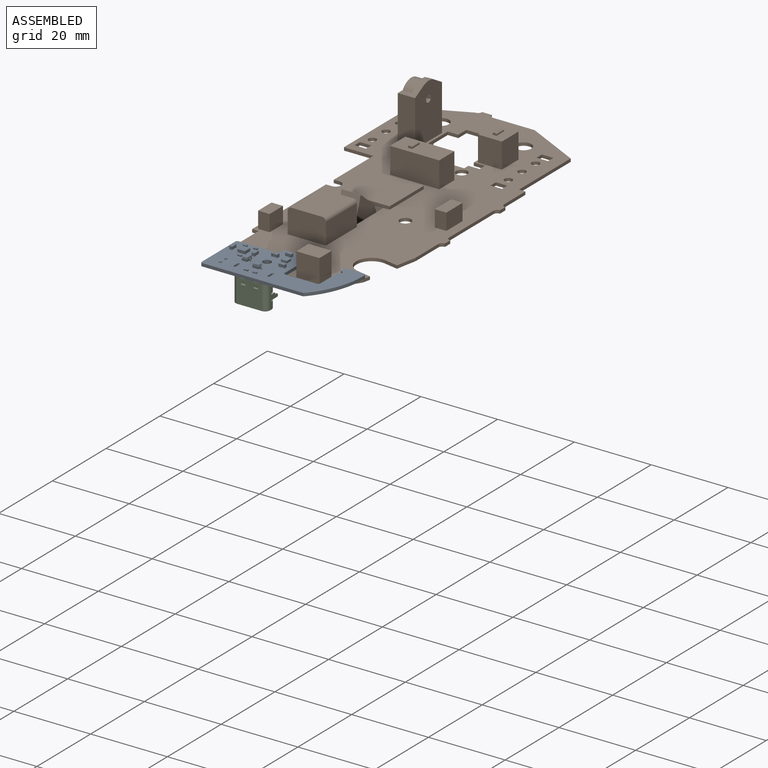
[diagram: assembled view]
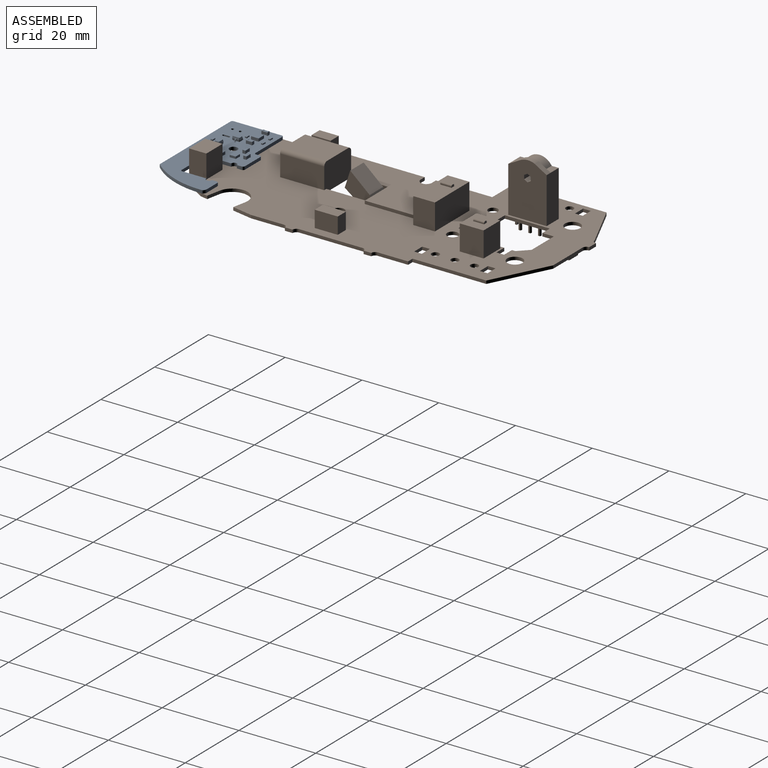
[diagram: assembled view, second angle]
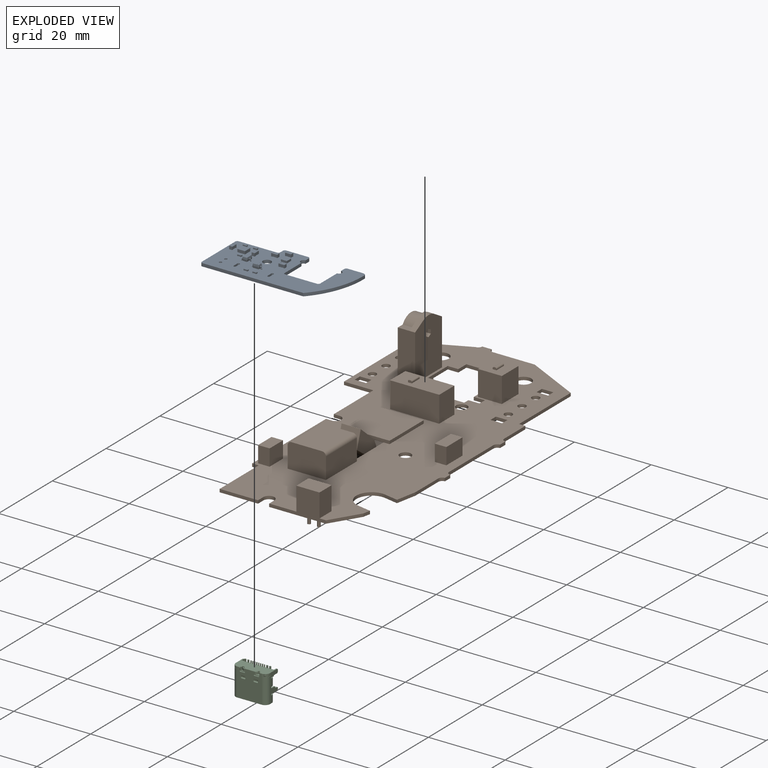
[diagram: exploded view]
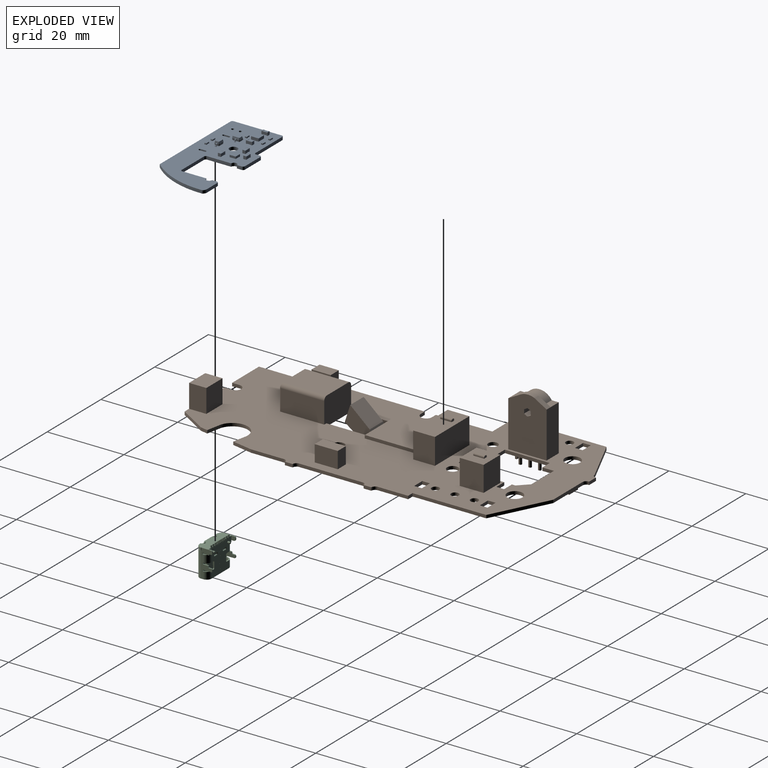
[diagram: exploded view, second angle]
FCSTD DOCUMENT  (FreeCAD 0.19R23266 (Git))
Label: cad
License: All rights reserved
LicenseURL: http://en.wikipedia.org/wiki/All_rights_reserved
objects: Part::Feature×14, App::Link×7, App::Part×6, Sketcher::SketchObject×2, PartDesign::FeatureBase×1, PartDesign::Body×1, Part::FeaturePython×1, Mesh::Feature×1, PartDesign::CoordinateSystem×1
note: 20 computed .brp shape members not serialized (recipe doc carries the construction recipe); baked Part::Feature solids carry a one-line shape summary decoded from their .brp

FEATURE [Part::Feature] Part__Feature  label="Circuit v5"
  shape: bbox 45.55 x 91.05 x 19.81 mm, 215 faces, 11 solids (baked)
FEATURE [PartDesign::FeatureBase] BaseFeature
  BaseFeature = -> Part__Feature
FEATURE [Sketcher::SketchObject] Sketch
  ExternalGeometry = -> [BaseFeature]
  MapMode = 5
  Placement = pos=(0,0,0.8) rot=(0,0,1;0rad)
  Support = -> [BaseFeature]
  sketch-geometry (15):
    g0: LineSegment StartX=-11.1598 StartY=-37.6013 StartZ=0 EndX=-11.1598 EndY=-51.1013 EndZ=0
    g1: LineSegment StartX=-11.1598 StartY=-51.1013 StartZ=0 EndX=16.5135 EndY=-51.1013 EndZ=0
    g2: LineSegment StartX=19.2106 StartY=-46.7035 StartZ=0 EndX=21.3824 EndY=-35.6013 EndZ=0
    g3: LineSegment StartX=19.2106 StartY=-46.7035 StartZ=0 EndX=16.5135 EndY=-51.1013 EndZ=0
    g4: Circle CenterX=15.8402 CenterY=-38.1013 CenterZ=0 NormalX=0 NormalY=0 NormalZ=1 AngleXU=0 Radius=1.25
    g5: Circle CenterX=6.59022 CenterY=-38.1013 CenterZ=0 NormalX=0 NormalY=0 NormalZ=1 AngleXU=0 Radius=1.25
    g6: LineSegment [constr] StartX=21.3824 StartY=-35.6013 StartZ=0 EndX=-0.159781 EndY=-35.6013 EndZ=0
    g7: LineSegment StartX=-0.159781 StartY=-35.6013 StartZ=0 EndX=-0.159781 EndY=-37.6013 EndZ=0
    g8: LineSegment StartX=-0.159781 StartY=-37.6013 StartZ=0 EndX=-11.1598 EndY=-37.6013 EndZ=0
    g9: LineSegment StartX=-0.159781 StartY=-35.6013 StartZ=0 EndX=6.59022 EndY=-35.6013 EndZ=0
    g10: LineSegment StartX=21.3824 StartY=-35.6013 StartZ=0 EndX=15.8402 EndY=-35.6013 EndZ=0
    g11: LineSegment StartX=6.59022 StartY=-35.6013 StartZ=0 EndX=6.59022 EndY=-45.6013 EndZ=0
    g12: LineSegment StartX=15.8402 StartY=-35.6013 StartZ=0 EndX=15.8402 EndY=-45.6013 EndZ=0
    g13: LineSegment StartX=15.8402 StartY=-45.6013 StartZ=0 EndX=6.59022 EndY=-45.6013 EndZ=0
    g14: Circle CenterX=0.290219 CenterY=-42.6513 CenterZ=0 NormalX=0 NormalY=0 NormalZ=1 AngleXU=0 Radius=1.05
  constraints (44):
    c: Vertical(g0)
    c: Coincident(g1,g0)
    c: Horizontal(g1)
    c: Parallel(g2,g-9)
    c: Coincident(g3,g2)
    c: Coincident(g3,g1)
    c: Parallel(g3,g-7)
    c: Distance(g4,g-6) = 6.5
    c: Equal(g5,g4)
    c: Diameter(g4) = 2.5
    c: Horizontal(g5,g4)
    c: Distance(g5,g-3) = 17.75
    c: Distance(g5,g4) = 9.25
    c: PointOnObject(g2,g-8)
    c: Distance(g2,g-6) = 9
    c: Coincident(g6,g2)
    c: Coincident(g7,g6)
    c: Vertical(g7)
    c: Coincident(g8,g7)
    c: Horizontal(g8)
    c: Coincident(g0,g8)
    c: PointOnObject(g0,g-3)
    c: Distance(g6,g-3) = 11
    c: Distance(g7,g-4) = 7
    c: Coincident(g9,g7)
    c: PointOnObject(g9,g6)
    c: Horizontal(g9)
    c: Coincident(g10,g2)
    c: PointOnObject(g10,g6)
    c: Coincident(g11,g9)
    c: Vertical(g11)
    c: Coincident(g12,g10)
    c: Vertical(g12)
    c: Coincident(g13,g12)
    c: Coincident(g13,g11)
    c: Horizontal(g13)
    c: PointOnObject(g5,g11)
    c: PointOnObject(g4,g12)
    c: Distance(g11,g-6) = 1
    c: Vertical(g1,g-7)
    c: Distance(g-6,g1) = 6.5
    c: Coincident(g14,g-5)
    c: Diameter(g14) = 2.1
    c: Distance(g14,g-4) = 1.95
FEATURE [PartDesign::Body] Body
  BaseFeature = -> Part__Feature
  Group = -> [BaseFeature,Sketch]
  Origin = -> Origin
  Tip = -> BaseFeature
FEATURE [Part::FeaturePython] Screw  label="M2x3-Screw"  # Fasteners workbench fastener (typed FeaturePython)
  Placement = pos=(0.3,-42.8,1.7) rot=(0,0,1;0rad)
  diameter = 2
  invert = false
  length = 0
  lengthCustom = 3
  matchOuter = false
  offset = 0
  thread = false
  type = 33
FEATURE [Mesh::Feature] g305_better_grip_v2  label="g305_better_grip-v2"
  Placement = pos=(0,-4.6,-5.9) rot=(0,0,1;0rad)
FEATURE [PartDesign::CoordinateSystem] Local_CS_de48
  AttacherType = Attacher::AttachEngine3D
FEATURE [Part::Feature] Pcb_de48
  Placement = pos=(-100,100,0) rot=(0,0,1;0rad)
  shape: bbox 32.4 x 15.5 x 0.8 mm, 42 faces (baked)
FEATURE [Sketcher::SketchObject] PCB_Sketch_de48
  sketch-geometry (21):
    g0: LineSegment StartX=31.4999 StartY=15.4982 StartZ=0 EndX=27.5 EndY=15.5 EndZ=0
    g1: LineSegment StartX=6e-16 StartY=13 StartZ=0 EndX=1e-06 EndY=0.5 EndZ=0
    g2: LineSegment StartX=0.5 StartY=1e-06 StartZ=0 EndX=26.8 EndY=3.6e-15 EndZ=0
    g3: LineSegment StartX=11 StartY=15 StartZ=0 EndX=11 EndY=14 EndZ=0
    g4: LineSegment StartX=10.5 StartY=13.5 StartZ=0 EndX=0.5 EndY=13.5 EndZ=0
    g5: LineSegment StartX=11.5 StartY=15.5 StartZ=0 EndX=17.25 EndY=15.5 EndZ=0
    g6: LineSegment StartX=17.75 StartY=15 StartZ=0 EndX=17.75 EndY=6 EndZ=0
    g7: LineSegment StartX=27 StartY=15 StartZ=0 EndX=27 EndY=6 EndZ=0
    g8: LineSegment StartX=26.5 StartY=5.5 StartZ=0 EndX=18.25 EndY=5.5 EndZ=0
    g9: ArcOfCircle CenterX=11.1665 CenterY=14.3574 CenterZ=0 NormalX=0 NormalY=0 NormalZ=1 AngleXU=0 Radius=21.226 StartAngle=5.54031 EndAngle=6.30015
    g10: ArcOfCircle CenterX=31.4 CenterY=14.3 CenterZ=0 NormalX=0 NormalY=0 NormalZ=1 AngleXU=0 Radius=1.20237 StartAngle=0.730734 EndAngle=1.48765
    g11: ArcOfCircle CenterX=31.8921 CenterY=14.8 CenterZ=0 NormalX=0 NormalY=0 NormalZ=1 AngleXU=0 Radius=0.504135 StartAngle=6.11867 EndAngle=6.92669
    g12: ArcOfCircle CenterX=0.5 CenterY=0.5 CenterZ=0 NormalX=0 NormalY=0 NormalZ=1 AngleXU=0 Radius=0.499999 StartAngle=3.14159 EndAngle=4.71239
    g13: ArcOfCircle CenterX=0.5 CenterY=13 CenterZ=0 NormalX=0 NormalY=0 NormalZ=1 AngleXU=0 Radius=0.5 StartAngle=1.5708 EndAngle=3.14159
    g14: ArcOfCircle CenterX=18.25 CenterY=6 CenterZ=0 NormalX=0 NormalY=0 NormalZ=1 AngleXU=0 Radius=0.499999 StartAngle=3.14159 EndAngle=4.71239
    g15: ArcOfCircle CenterX=26.5 CenterY=6 CenterZ=0 NormalX=0 NormalY=0 NormalZ=1 AngleXU=0 Radius=0.499999 StartAngle=4.71239 EndAngle=6.28319
    g16: ArcOfCircle CenterX=27.5 CenterY=15 CenterZ=0 NormalX=0 NormalY=0 NormalZ=1 AngleXU=0 Radius=0.499999 StartAngle=1.5708 EndAngle=3.14159
    g17: ArcOfCircle CenterX=17.25 CenterY=15 CenterZ=0 NormalX=0 NormalY=0 NormalZ=1 AngleXU=0 Radius=0.499999 StartAngle=0 EndAngle=1.5708
    g18: ArcOfCircle CenterX=11.5 CenterY=15 CenterZ=0 NormalX=0 NormalY=0 NormalZ=1 AngleXU=0 Radius=0.499999 StartAngle=1.5708 EndAngle=3.14159
    g19: ArcOfCircle CenterX=10.5 CenterY=14 CenterZ=0 NormalX=0 NormalY=0 NormalZ=1 AngleXU=0 Radius=0.499999 StartAngle=4.71239 EndAngle=6.28319
    g20: Circle CenterX=11.45 CenterY=8.45 CenterZ=0 NormalX=0 NormalY=0 NormalZ=1 AngleXU=0 Radius=1.05
  constraints (20):
    c: Coincident(g1,g12)
    c: Coincident(g1,g13)
    c: Coincident(g12,g2)
    c: Coincident(g13,g4)
    c: Coincident(g19,g4)
    c: Coincident(g19,g3)
    c: Coincident(g3,g18)
    c: Coincident(g5,g18)
    c: Coincident(g5,g17)
    c: Coincident(g6,g14)
    c: Coincident(g6,g17)
    c: Coincident(g14,g8)
    c: Coincident(g15,g8)
    c: Coincident(g9,g2)
    c: Coincident(g7,g15)
    c: Coincident(g7,g16)
    c: Coincident(g0,g16)
    c: Coincident(g10,g0)
    c: Coincident(g11,g10)
    c: Coincident(g11,g9)
FEATURE [App::Part] Board_Geoms_de48
  Group = -> [Local_CS_de48,Pcb_de48,PCB_Sketch_de48]
  Origin = -> Origin002
FEATURE [Part::Feature] Shape  label="U101_DFN-6-1EP_2x2mm_Pitch0.5mm_5FD281E7"
  Placement = pos=(4.45,9.8,0) rot=(0,0,1;0rad)
  shape: bbox 2 x 1.98 x 0.77 mm, 50 faces (baked)
FEATURE [Part::Feature] Shape001  label="Q101_SOT_323_SC_70_5FD17E31"
  Placement = pos=(7.5,6.7,0) rot=(0,0,1;0rad)
  shape: bbox 2 x 2 x 1.05 mm, 76 faces (baked)
FEATURE [Part::Feature] Shape002  label="U102_MLF_6_1EP_16x16mm_P05mm_EP05x126mm_5FD17EDE"
  Placement = pos=(14.6,11,0) rot=(0,0,-1;1.5708rad)
  shape: bbox 1.58 x 1.6 x 0.57 mm, 50 faces (baked)
FEATURE [Part::Feature] Shape003  label="R105_R_0402_1005Metric_5FD17E86"
  Placement = pos=(5,7.5,0) rot=(0,0,1;0rad)
  shape: bbox 1 x 0.5 x 0.35 mm, 26 faces (baked)
FEATURE [App::Link] R105_R_0402_1005Metric_5FD17E86_ln_  label="R104_R_0402_1005Metric_5FD17E75"
  LinkPlacement = pos=(5.8,12.25,0) rot=(0,0,1;3.14159rad)
  LinkedObject = -> Shape003
  Placement = pos=(5.8,12.25,0) rot=(0,0,1;3.14159rad)
FEATURE [App::Link] R105_R_0402_1005Metric_5FD17E86_ln_001  label="R103_R_0402_1005Metric_5FD1C820"
  LinkPlacement = pos=(3.1,12.25,0) rot=(0,0,1;0rad)
  LinkedObject = -> Shape003
  Placement = pos=(3.1,12.25,0) rot=(0,0,1;0rad)
FEATURE [App::Link] R105_R_0402_1005Metric_5FD17E86_ln_002  label="R102_R_0402_1005Metric_5FD17E53"
  LinkPlacement = pos=(12.6,2.3,0) rot=(0,0,1;0rad)
  LinkedObject = -> Shape003
  Placement = pos=(12.6,2.3,0) rot=(0,0,1;0rad)
FEATURE [App::Link] R105_R_0402_1005Metric_5FD17E86_ln_003  label="R101_R_0402_1005Metric_5FD17E42"
  LinkPlacement = pos=(10.3,2.3,0) rot=(0,0,1;0rad)
  LinkedObject = -> Shape003
  Placement = pos=(10.3,2.3,0) rot=(0,0,1;0rad)
FEATURE [Part::Feature] Shape004  label="L101_L_0603_1608Metric_5FD17E1C"
  Placement = pos=(13.65,13.5,0) rot=(0,0,1;3.14159rad)
  shape: bbox 1.6 x 0.8 x 0.8 mm, 28 faces (baked)
FEATURE [Part::Feature] Shape005  label="D102_D_SOD_323_5FD17E0B"
  Placement = pos=(11.5,4.7,0) rot=(0,0,1;3.14159rad)
  shape: bbox 2.5 x 1.25 x 1.1 mm, 67 faces (baked)
FEATURE [Part::Feature] Shape007  label="C104_C_0603_1608Metric_5FD17DE0"
  Placement = pos=(11.35,11.65,0) rot=(0,0,1;0rad)
  shape: bbox 1.6 x 0.8 x 0.8 mm, 28 faces (baked)
FEATURE [App::Link] C104_C_0603_1608Metric_5FD17DE0_ln_  label="C103_C_0603_1608Metric_5FD17DCF"
  LinkPlacement = pos=(15.6,8.25,0) rot=(0,0,1;0rad)
  LinkedObject = -> Shape007
  Placement = pos=(15.6,8.25,0) rot=(0,0,1;0rad)
FEATURE [App::Link] C104_C_0603_1608Metric_5FD17DE0_ln_001  label="C102_C_0603_1608Metric_5FD17DBE"
  LinkPlacement = pos=(1.55,9.85,0) rot=(0,0,1;1.5708rad)
  LinkedObject = -> Shape007
  Placement = pos=(1.55,9.85,0) rot=(0,0,1;1.5708rad)
FEATURE [App::Link] C104_C_0603_1608Metric_5FD17DE0_ln_002  label="C101_C_0603_1608Metric_5FD17DAD"
  LinkPlacement = pos=(7.35,9.9,0) rot=(0,0,1;1.5708rad)
  LinkedObject = -> Shape007
  Placement = pos=(7.35,9.9,0) rot=(0,0,1;1.5708rad)
FEATURE [App::Part] Top_de48
  Group = -> [Shape,Shape001,Shape002,Shape003,R105_R_0402_1005Metric_5FD17E86_ln_,R105_R_0402_1005Metric_5FD17E86_ln_001,R105_R_0402_1005Metric_5FD17E86_ln_002,R105_R_0402_1005Metric_5FD17E86_ln_003,Shape004,Shape005,Shape007,C104_C_0603_1608Metric_5FD17DE0_ln_,C104_C_0603_1608Metric_5FD17DE0_ln_001,C104_C_0603_1608Metric_5FD17DE0_ln_002]
  Origin = -> Origin004
FEATURE [Part::Feature] Shape006  label="D101_LED_0603_1608Metric_Castellated_5FD17DF3"
  Placement = pos=(18.9,3.45,-0.8) rot=(0,1,0;3.14159rad)
  shape: bbox 1.6 x 0.8 x 1.1 mm, 38 faces (baked)
FEATURE [App::Part] Bot_de48
  Group = -> [Shape006]
  Origin = -> Origin005
FEATURE [App::Part] Step_Models_de48
  Group = -> [Top_de48,Bot_de48]
  Origin = -> Origin003
FEATURE [App::Part] Board_de48  label="g305-battery-addon"
  Group = -> [Board_Geoms_de48,Step_Models_de48]
  Origin = -> Origin001
  Placement = pos=(-11.2,-51.7,1.6) rot=(0,0,1;0rad)
FEATURE [Part::Feature] Part__Feature003  label="Frame"
  shape: bbox 8.95 x 7.3 x 4.2 mm, 323 faces (baked)
FEATURE [Part::Feature] Part__Feature002  label="Mold"
  shape: bbox 8.95 x 6.5 x 3.731 mm, 55 faces (baked)
FEATURE [Part::Feature] Part__Feature001  label="PcbPins"
  shape: bbox 6.9 x 0.99 x 0.3 mm, 122 faces (baked)
FEATURE [Part::Feature] Part__Feature004  label="ConPins"
  shape: bbox 6 x 4.32 x 0.61 mm, 70 faces (baked)
FEATURE [App::Part] Part
  Group = -> [Part__Feature003,Part__Feature002,Part__Feature001,Part__Feature004]
  Origin = -> Origin008
  Placement = pos=(-4.2,-46.7,-6.6) rot=(1,0,0;1.5708rad)
